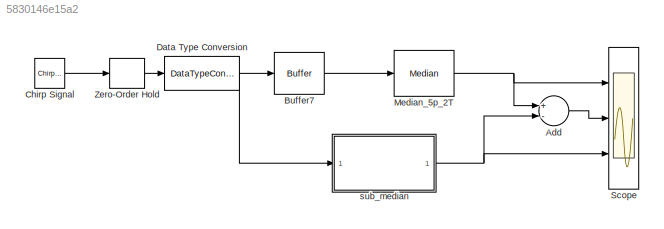
MODEL slx_5830146e15a2
KIND model
CONFIG AbsTol = auto
CONFIG FixedStep = auto
CONFIG MaxStep = auto
CONFIG MinStep = auto
CONFIG RelTol = 1e-3
CONFIG SampleTimeConstraint = Unconstrained
CONFIG Solver = FixedStepDiscrete
CONFIG SolverMode = SingleTasking
CONFIG SolverName = FixedStepDiscrete
CONFIG StartTime = 0.0
CONFIG StopTime = 10
BLOCK [Sum] Add
  InputSameDT = off
  Inputs = +-
  OutDataTypeStr = Inherit: Inherit via internal rule
  Ports = [2, 1]
  SaturateOnIntegerOverflow = off
BLOCK [Buffer] Buffer7
  N = 5
  TreatMby1Signals = One channel
  V = 4
BLOCK [Reference] Chirp Signal  REF=simulink/Sources/Chirp Signal
  Ports = [0, 1]
  SourceBlock = simulink/Sources/Chirp Signal
  SourceType = chirp
BLOCK [DataTypeConversion] Data Type Conversion
  OutDataTypeStr = fixdt(1,16,14)
  RndMeth = Floor
  SaturateOnIntegerOverflow = off
BLOCK [Reference] Median_5p_2T  REF=dspstat3/Median
  Ports = [1, 1]
  SourceBlock = dspstat3/Median
  SourceType = Median
BLOCK [Scope] Scope
  NumInputPorts = 3
  Ports = [3]
  ScopeSpecificationString = Simulink.scopes.TimeScopeBlockCfg('CurrentConfiguration', extmgr.ConfigurationSet(extmgr.Configuration('Core','General UI',true),extmgr.Configuration('Core','Source UI',true),extmgr.Configuration('Sources','WiredSimulink',true,'DataLoggingSaveFormat','StructureWithTime','DataLoggingDecimation','1','DataLoggingDecimateData',true),extmgr.Configuration('Visuals','Time Domain',true,'SerializedDisplays...<+3062ch>
BLOCK [ZeroOrderHold] Zero-Order Hold
  SampleTime = 1/1000
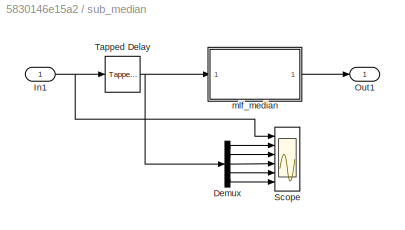
BLOCK [SubSystem] sub_median
  Ports = [1, 1]
  RequestExecContextInheritance = off
  Variant = off
BLOCK [Demux] sub_median/Demux
  DisplayOption = bar
  Outputs = 5
  Ports = [1, 5]
BLOCK [Inport] sub_median/In1
  IconDisplay = Port number
BLOCK [Outport] sub_median/Out1
  IconDisplay = Port number
BLOCK [Scope] sub_median/Scope
  NumInputPorts = 6
  Ports = [6]
  ScopeSpecificationString = Simulink.scopes.TimeScopeBlockCfg('CurrentConfiguration', extmgr.ConfigurationSet(extmgr.Configuration('Core','General UI',true),extmgr.Configuration('Core','Source UI',true),extmgr.Configuration('Sources','WiredSimulink',true,'DataLoggingVariableName','ScopeData1','DataLoggingSaveFormat','StructureWithTime','DataLoggingDecimation','1','DataLoggingDecimateData',true),extmgr.Configuration('Visuals'...<+6464ch>
BLOCK [Reference] sub_median/Tapped Delay  REF=simulink/Discrete/Tapped Delay
  Ports = [1, 1]
  SourceBlock = simulink/Discrete/Tapped Delay
  SourceType = Tapped Delay Line
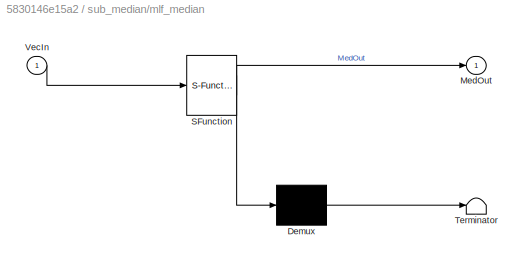
BLOCK [SubSystem] sub_median/mlf_median
  ErrorFcn = Stateflow.Translate.translate
  PermitHierarchicalResolution = ExplicitOnly
  Ports = [1, 1]
  RequestExecContextInheritance = off
  SFBlockType = MATLAB Function
  TreatAsAtomicUnit = on
  Variant = off
BLOCK [Demux] sub_median/mlf_median/ Demux 
  Outputs = 1
  Ports = [1, 1]
BLOCK [S-Function] sub_median/mlf_median/ SFunction 
  EnableBusSupport = on
  FunctionName = sf_sfun
  PortCounts = [1 2]
  Ports = [1, 2]
  SFunctionDeploymentMode = off
  Tag = Stateflow S-Function mlf_median 2
BLOCK [Terminator] sub_median/mlf_median/ Terminator 
BLOCK [Outport] sub_median/mlf_median/MedOut
  IconDisplay = Port number
BLOCK [Inport] sub_median/mlf_median/VecIn
  IconDisplay = Port number
LINE Add:1 -> Scope:2
LINE Buffer7:1 -> Median_5p_2T:1
LINE Chirp Signal:1 -> Zero-Order Hold:1
NET Data Type Conversion:1 -> Buffer7:1, sub_median:1
NET Median_5p_2T:1 -> Add:1, Scope:1
LINE Zero-Order Hold:1 -> Data Type Conversion:1
LINE sub_median/Demux:1 -> sub_median/Scope:2
LINE sub_median/Demux:2 -> sub_median/Scope:3
LINE sub_median/Demux:3 -> sub_median/Scope:4
LINE sub_median/Demux:4 -> sub_median/Scope:5
LINE sub_median/Demux:5 -> sub_median/Scope:6
NET sub_median/In1:1 -> sub_median/Scope:1, sub_median/Tapped Delay:1
NET sub_median/Tapped Delay:1 -> sub_median/Demux:1, sub_median/mlf_median:1
LINE sub_median/mlf_median:1 -> sub_median/Out1:1
NET sub_median:1 -> Add:2, Scope:3
note: NET lines group one-source signal fan-out (src -> all destinations, sorted); 1:1 wires keep LINE
CHART sub_median/mlf_median states=1 transitions=1
  STATE_LABEL 'eML_blk_kernel()'
  STATE_LABEL 'SCRIPT:\nfunction MedOut = fcn(VecIn)\n% median filter\nInputLength = 5;\nfor n = uint8(1:length(VecIn))\n    for m = uint8(1:length(VecIn) - 1)\n        if VecIn(m) > VecIn(m+1)\n            tmp = VecIn(m+1);\n            VecIn(m+1) = VecIn(m);\n            VecIn(m) = tmp;\n        end\n    end\nend\n\nMedOut = VecIn(round(InputLength/2));'
